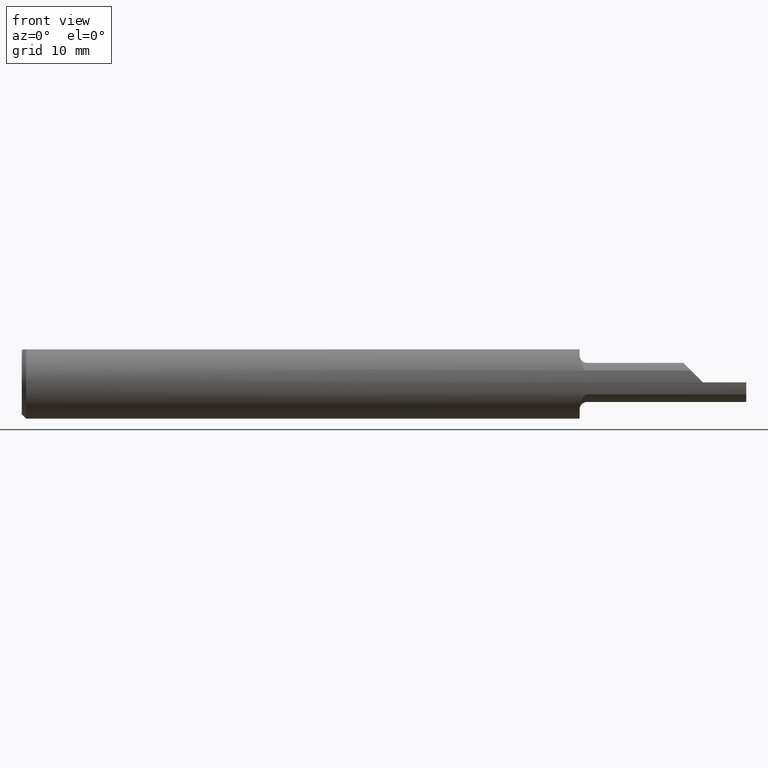
[diagram: clean part render]
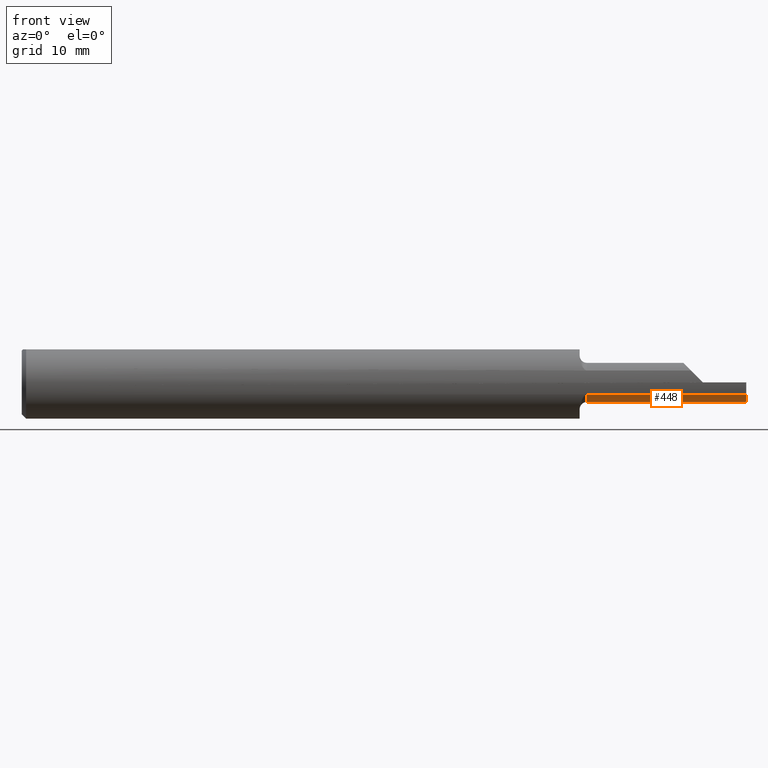
[diagram: same view with one face highlighted and labeled with its STEP entity id]
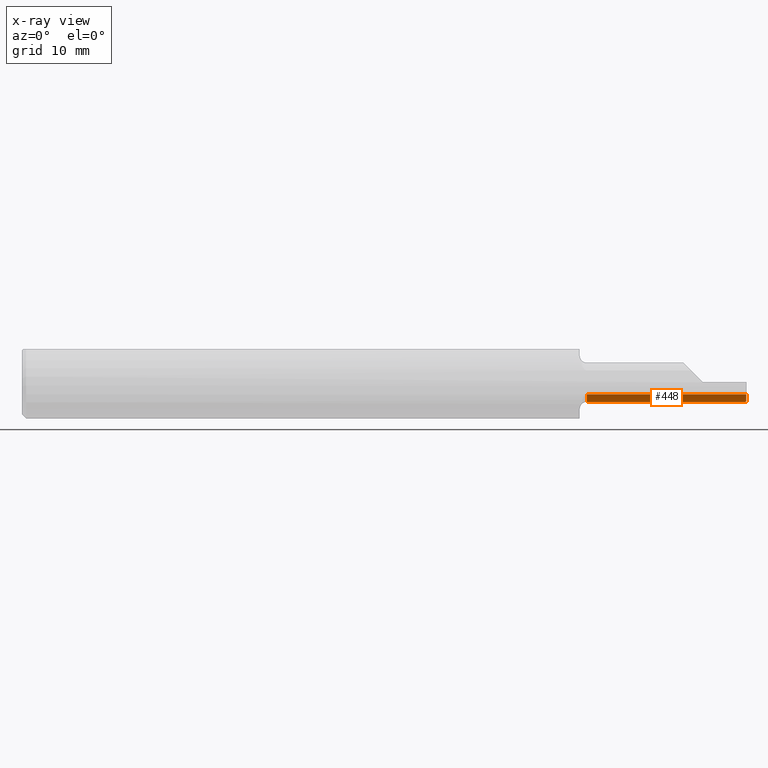
[diagram: x-ray of the same camera — body ghosted, the highlighted face saturated]
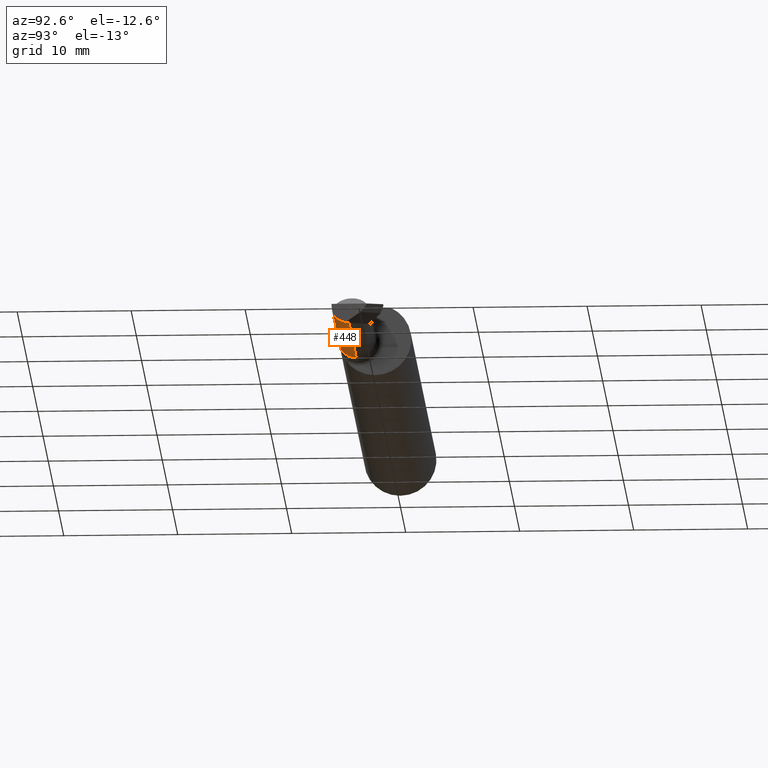
[diagram: same view with one face highlighted and labeled with its STEP entity id]
A machine part, front view. The second image highlights one B-rep face of the part: STEP entity #448.
The next image is the same camera in x-ray: the body ghosted, the highlighted face saturated — about 0% of this face is hidden behind the body in this view.
A second angle (auxiliary view) of the same face is appended — the face is thin or edge-on in the first view.
In plain terms, the highlighted cylindrical surface (edge-blend (fillet) strip) has radius 1.7145 mm, axis along (-1, -0, -0).
Its self-contained STEP definition (entity closure, byte-faithful):
#26 = DIRECTION ( 'NONE',  ( 0.000000000000000000, 0.000000000000000000, 1.000000000000000000 ) ) ;
#63 = CARTESIAN_POINT ( 'NONE',  ( 2.500000000000000000, -0.07777569386178065369, -0.06615134726012476818 ) ) ;
#69 = CARTESIAN_POINT ( 'NONE',  ( 2.450000000000000178, -0.06435000000000004605, -0.06750000000000001832 ) ) ;
#74 = EDGE_CURVE ( 'NONE', #953, #473, #312, .T. ) ;
#108 = CARTESIAN_POINT ( 'NONE',  ( 2.496029762434592403, -0.06435000000000004605, -0.06750000000000001832 ) ) ;
#110 = CARTESIAN_POINT ( 'NONE',  ( 1.949999999999999956, -0.06435000000000003217, -0.06750000000000001832 ) ) ;
#121 = VERTEX_POINT ( 'NONE', #69 ) ;
#122 = CYLINDRICAL_SURFACE ( 'NONE', #895, 0.06750000000000001832 ) ;
#146 = CARTESIAN_POINT ( 'NONE',  ( 2.498524702252900909, -0.07335304073178651463, -0.06704894329466547231 ) ) ;
#183 = CIRCLE ( 'NONE', #373, 0.06750000000000001832 ) ;
#201 = EDGE_LOOP ( 'NONE', ( #602, #413, #444, #771, #612, #315 ) ) ;
#203 = CARTESIAN_POINT ( 'NONE',  ( 2.500000000000000000, -0.07777569386178065369, -0.06615134726012476818 ) ) ;
#209 = CARTESIAN_POINT ( 'NONE',  ( 1.925000000000000044, -0.06435000000000003217, -0.06750000000000001832 ) ) ;
#214 = CARTESIAN_POINT ( 'NONE',  ( 2.496029762434592403, -0.06435000000000004605, -0.06750000000000001832 ) ) ;
#248 = AXIS2_PLACEMENT_3D ( 'NONE', #763, #400, #26 ) ;
#312 = LINE ( 'NONE', #979, #847 ) ;
#315 = ORIENTED_EDGE ( 'NONE', *, *, #498, .T. ) ;
#334 = VERTEX_POINT ( 'NONE', #110 ) ;
#345 = CARTESIAN_POINT ( 'NONE',  ( 2.500000000000000000, -0.06435000000000004605, -0.06750000000000001832 ) ) ;
#347 = VERTEX_POINT ( 'NONE', #203 ) ;
#365 = DIRECTION ( 'NONE',  ( 1.000000000000000000, 0.000000000000000000, 0.000000000000000000 ) ) ;
#373 = AXIS2_PLACEMENT_3D ( 'NONE', #912, #365, #978 ) ;
#379 = EDGE_CURVE ( 'NONE', #121, #334, #487, .T. ) ;
#400 = DIRECTION ( 'NONE',  ( 1.000000000000000000, -0.000000000000000000, -0.000000000000000000 ) ) ;
#404 =( BOUNDED_CURVE ( )  B_SPLINE_CURVE ( 3, ( #214, #967, #146, #63 ),
 .UNSPECIFIED., .F., .T. ) 
 B_SPLINE_CURVE_WITH_KNOTS ( ( 4, 4 ),
 ( 0.6108652381980129720, 0.8110997559319969019 ),
 .UNSPECIFIED. ) 
 CURVE ( )  GEOMETRIC_REPRESENTATION_ITEM ( )  RATIONAL_B_SPLINE_CURVE ( ( 1.000000000000000000, 0.9966616347228353101, 0.9966616347228353101, 1.000000000000000000 ) ) 
 REPRESENTATION_ITEM ( '' )  );
#407 = EDGE_CURVE ( 'NONE', #980, #121, #570, .T. ) ;
#413 = ORIENTED_EDGE ( 'NONE', *, *, #407, .F. ) ;
#428 = DIRECTION ( 'NONE',  ( 0.000000000000000000, 0.000000000000000000, 1.000000000000000000 ) ) ;
#444 = ORIENTED_EDGE ( 'NONE', *, *, #523, .T. ) ;
#448 = ADVANCED_FACE ( 'NONE', ( #564 ), #122, .T. ) ;
#473 = VERTEX_POINT ( 'NONE', #889 ) ;
#487 = LINE ( 'NONE', #209, #832 ) ;
#498 = EDGE_CURVE ( 'NONE', #473, #334, #183, .T. ) ;
#501 = CARTESIAN_POINT ( 'NONE',  ( 1.925000000000000044, -0.06435000000000003217, 0.000000000000000000 ) ) ;
#523 = EDGE_CURVE ( 'NONE', #980, #347, #404, .T. ) ;
#564 = FACE_OUTER_BOUND ( 'NONE', #201, .T. ) ;
#570 = LINE ( 'NONE', #345, #650 ) ;
#602 = ORIENTED_EDGE ( 'NONE', *, *, #379, .F. ) ;
#612 = ORIENTED_EDGE ( 'NONE', *, *, #74, .T. ) ;
#641 = DIRECTION ( 'NONE',  ( -1.000000000000000000, -0.000000000000000000, -0.000000000000000000 ) ) ;
#650 = VECTOR ( 'NONE', #713, 39.37007874015748143 ) ;
#663 = DIRECTION ( 'NONE',  ( -1.000000000000000000, -0.000000000000000000, -0.000000000000000000 ) ) ;
#667 = CIRCLE ( 'NONE', #248, 0.06750000000000001832 ) ;
#694 = CARTESIAN_POINT ( 'NONE',  ( 2.500000000000000000, -0.1178880730380729852, -0.04110869415792685333 ) ) ;
#713 = DIRECTION ( 'NONE',  ( -1.000000000000000000, -0.000000000000000000, -0.000000000000000000 ) ) ;
#744 = EDGE_CURVE ( 'NONE', #953, #347, #667, .T. ) ;
#763 = CARTESIAN_POINT ( 'NONE',  ( 2.500000000000000000, -0.06435000000000003217, 0.000000000000000000 ) ) ;
#771 = ORIENTED_EDGE ( 'NONE', *, *, #744, .F. ) ;
#808 = DIRECTION ( 'NONE',  ( -1.000000000000000000, -0.000000000000000000, -0.000000000000000000 ) ) ;
#832 = VECTOR ( 'NONE', #641, 39.37007874015748143 ) ;
#847 = VECTOR ( 'NONE', #663, 39.37007874015748143 ) ;
#889 = CARTESIAN_POINT ( 'NONE',  ( 1.949999999999999956, -0.1178880730380729852, -0.04110869415792685333 ) ) ;
#895 = AXIS2_PLACEMENT_3D ( 'NONE', #501, #808, #428 ) ;
#912 = CARTESIAN_POINT ( 'NONE',  ( 1.949999999999999956, -0.06435000000000003217, 0.000000000000000000 ) ) ;
#953 = VERTEX_POINT ( 'NONE', #694 ) ;
#967 = CARTESIAN_POINT ( 'NONE',  ( 2.497196856898272532, -0.06886281944569799807, -0.06750000000000000444 ) ) ;
#978 = DIRECTION ( 'NONE',  ( 0.000000000000000000, 0.000000000000000000, -1.000000000000000000 ) ) ;
#979 = CARTESIAN_POINT ( 'NONE',  ( 2.187500000000000000, -0.1178880730380729852, -0.04110869415792685333 ) ) ;
#980 = VERTEX_POINT ( 'NONE', #108 ) ;